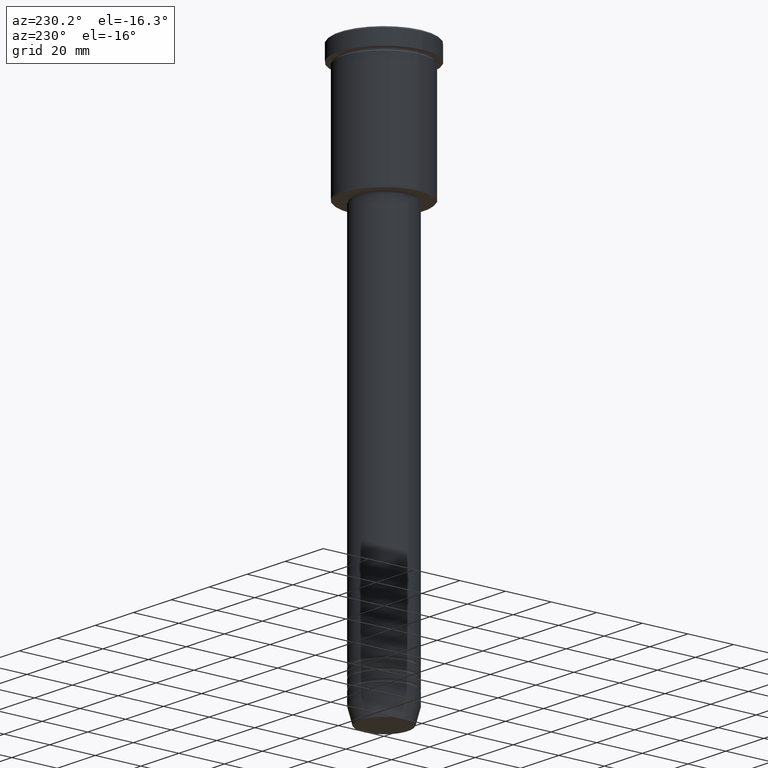
[diagram: clean part render]
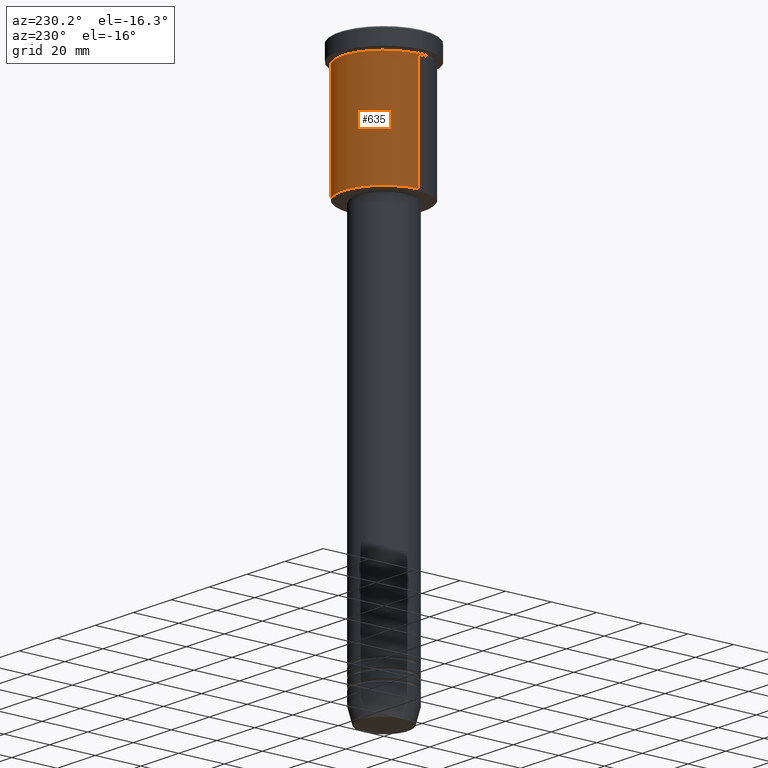
[diagram: same view with one face highlighted and labeled with its STEP entity id]
A machine part, auxiliary view. The second image highlights one B-rep face of the part: STEP entity #635.
In plain terms, the highlighted cylindrical surface (partial cylindrical patch) has radius 18 mm, axis along (-0, -0, 1).
Its self-contained STEP definition (entity closure, byte-faithful):
#65 = CARTESIAN_POINT ( 'NONE',  ( 18.00000000000000000, 0.000000000000000000, 0.000000000000000000 ) ) ;
#105 = AXIS2_PLACEMENT_3D ( 'NONE', #734, #995, #285 ) ;
#191 = VECTOR ( 'NONE', #578, 1000.000000000000000 ) ;
#229 = VERTEX_POINT ( 'NONE', #900 ) ;
#236 = VECTOR ( 'NONE', #504, 1000.000000000000000 ) ;
#253 = LINE ( 'NONE', #65, #236 ) ;
#261 = DIRECTION ( 'NONE',  ( -1.000000000000000000, 0.000000000000000000, 0.000000000000000000 ) ) ;
#285 = DIRECTION ( 'NONE',  ( 1.000000000000000000, 0.000000000000000000, 0.000000000000000000 ) ) ;
#289 = ORIENTED_EDGE ( 'NONE', *, *, #574, .T. ) ;
#294 = EDGE_CURVE ( 'NONE', #818, #229, #772, .T. ) ;
#330 = DIRECTION ( 'NONE',  ( -0.000000000000000000, -0.000000000000000000, 1.000000000000000000 ) ) ;
#366 = DIRECTION ( 'NONE',  ( -0.000000000000000000, -0.000000000000000000, 1.000000000000000000 ) ) ;
#409 = CARTESIAN_POINT ( 'NONE',  ( 18.00000000000000000, 0.000000000000000000, -7.999999999999996447 ) ) ;
#427 = EDGE_CURVE ( 'NONE', #577, #1096, #253, .T. ) ;
#451 = CIRCLE ( 'NONE', #105, 18.00000000000000000 ) ;
#464 = CIRCLE ( 'NONE', #959, 18.00000000000000000 ) ;
#490 = ORIENTED_EDGE ( 'NONE', *, *, #515, .F. ) ;
#504 = DIRECTION ( 'NONE',  ( -0.000000000000000000, -0.000000000000000000, 1.000000000000000000 ) ) ;
#515 = EDGE_CURVE ( 'NONE', #1096, #229, #451, .T. ) ;
#574 = EDGE_CURVE ( 'NONE', #577, #818, #464, .T. ) ;
#577 = VERTEX_POINT ( 'NONE', #694 ) ;
#578 = DIRECTION ( 'NONE',  ( -0.000000000000000000, -0.000000000000000000, 1.000000000000000000 ) ) ;
#624 = CARTESIAN_POINT ( 'NONE',  ( -18.00000000000000000, 2.204364238465235428E-15, -55.50000000000001421 ) ) ;
#635 = ADVANCED_FACE ( 'NONE', ( #915 ), #1007, .T. ) ;
#694 = CARTESIAN_POINT ( 'NONE',  ( 18.00000000000000000, 0.000000000000000000, -55.50000000000001421 ) ) ;
#709 = CARTESIAN_POINT ( 'NONE',  ( 0.000000000000000000, 0.000000000000000000, -55.50000000000001421 ) ) ;
#718 = EDGE_LOOP ( 'NONE', ( #289, #960, #490, #965 ) ) ;
#725 = DIRECTION ( 'NONE',  ( 1.000000000000000000, 0.000000000000000000, 0.000000000000000000 ) ) ;
#734 = CARTESIAN_POINT ( 'NONE',  ( 0.000000000000000000, 0.000000000000000000, -7.999999999999996447 ) ) ;
#772 = LINE ( 'NONE', #1136, #191 ) ;
#818 = VERTEX_POINT ( 'NONE', #624 ) ;
#900 = CARTESIAN_POINT ( 'NONE',  ( -18.00000000000000000, 2.204364238465235428E-15, -7.999999999999996447 ) ) ;
#915 = FACE_OUTER_BOUND ( 'NONE', #718, .T. ) ;
#959 = AXIS2_PLACEMENT_3D ( 'NONE', #709, #330, #261 ) ;
#960 = ORIENTED_EDGE ( 'NONE', *, *, #294, .T. ) ;
#965 = ORIENTED_EDGE ( 'NONE', *, *, #427, .F. ) ;
#995 = DIRECTION ( 'NONE',  ( -0.000000000000000000, -0.000000000000000000, 1.000000000000000000 ) ) ;
#1007 = CYLINDRICAL_SURFACE ( 'NONE', #1050, 18.00000000000000000 ) ;
#1025 = CARTESIAN_POINT ( 'NONE',  ( 0.000000000000000000, 0.000000000000000000, 0.000000000000000000 ) ) ;
#1050 = AXIS2_PLACEMENT_3D ( 'NONE', #1025, #366, #725 ) ;
#1096 = VERTEX_POINT ( 'NONE', #409 ) ;
#1136 = CARTESIAN_POINT ( 'NONE',  ( -18.00000000000000000, 2.204364238465235428E-15, 0.000000000000000000 ) ) ;